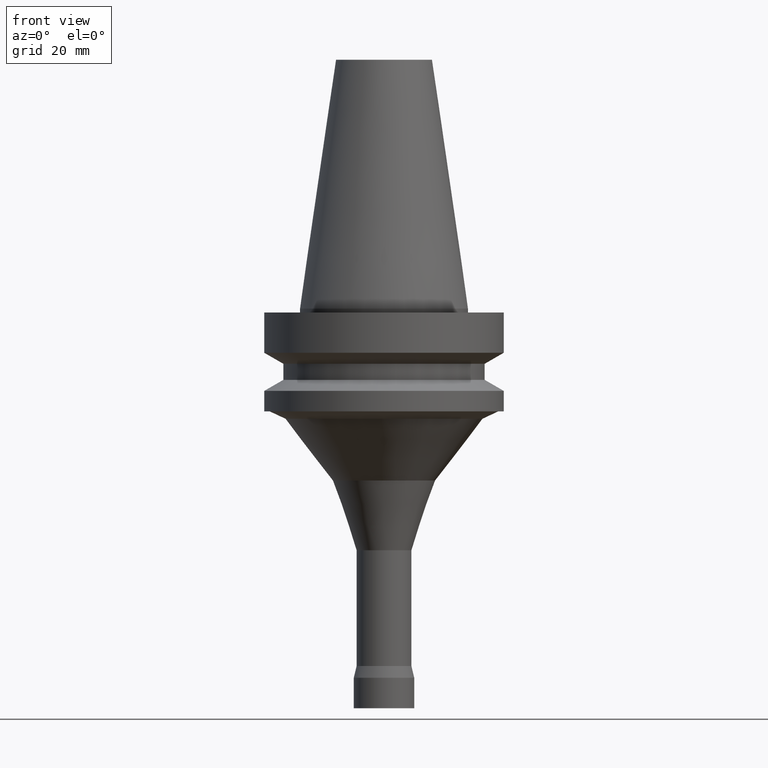
[diagram: clean part render]
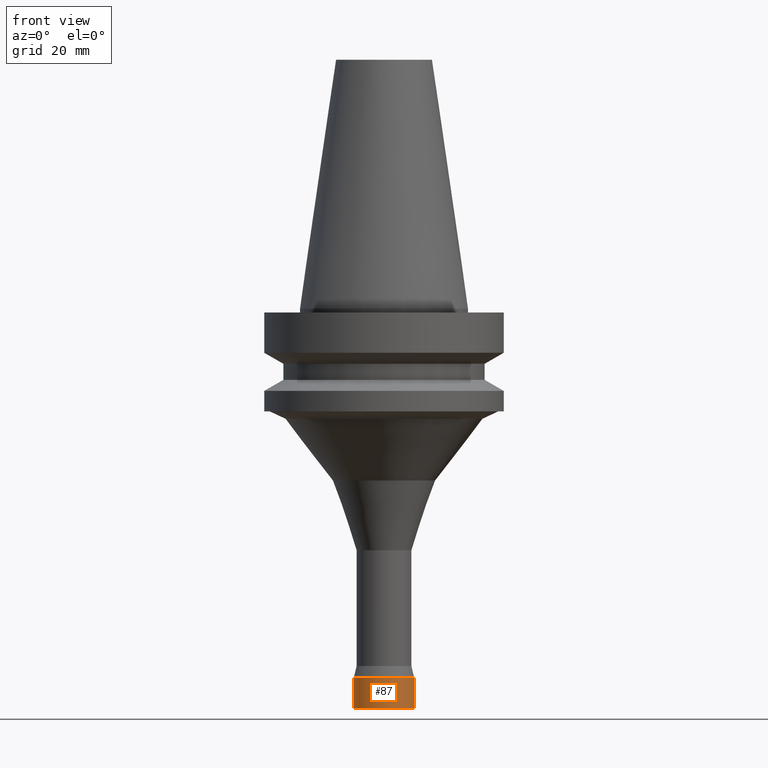
[diagram: same view with one face highlighted and labeled with its STEP entity id]
A machine part, front view. The second image highlights one B-rep face of the part: STEP entity #87.
In plain terms, the highlighted cylindrical surface (bore or boss wall) has radius 8 mm, axis along (-0, -0, 1).
Its self-contained STEP definition (entity closure, byte-faithful):
#87=ADVANCED_FACE('',(#129,#130),#131,.T.);
#129=FACE_BOUND('',#178,.T.);
#130=FACE_BOUND('',#179,.T.);
#131=CYLINDRICAL_SURFACE('',#180,8.0);
#178=EDGE_LOOP('',(#251));
#179=EDGE_LOOP('',(#252));
#180=AXIS2_PLACEMENT_3D('',#253,#254,#255);
#251=ORIENTED_EDGE('',*,*,#287,.F.);
#252=ORIENTED_EDGE('',*,*,#286,.T.);
#253=CARTESIAN_POINT('',(6.18446633569413E-015,1.23689326713883E-014,-101.0));
#254=DIRECTION('',(-6.12323399573677E-017,-1.22464679914735E-016,1.0));
#255=DIRECTION('',(-1.23259516440783E-032,1.0,1.22464679914735E-016));
#286=EDGE_CURVE('',#314,#314,#315,.T.);
#287=EDGE_CURVE('',#316,#316,#317,.T.);
#314=VERTEX_POINT('',#346);
#315=CIRCLE('',#347,8.0);
#316=VERTEX_POINT('',#348);
#317=CIRCLE('',#349,8.0);
#346=CARTESIAN_POINT('',(5.93953697586466E-015,8.00000000000001,-97.0));
#347=AXIS2_PLACEMENT_3D('',#390,#391,#392);
#348=CARTESIAN_POINT('',(6.4293956955236E-015,8.00000000000001,-105.0));
#349=AXIS2_PLACEMENT_3D('',#393,#394,#395);
#390=CARTESIAN_POINT('',(5.93953697586466E-015,1.18790739517293E-014,-97.0));
#391=DIRECTION('',(6.12323399573677E-017,1.22464679914735E-016,-1.0));
#392=DIRECTION('',(-1.23259516440783E-032,1.0,1.22464679914735E-016));
#393=CARTESIAN_POINT('',(6.4293956955236E-015,1.28587913910472E-014,-105.0));
#394=DIRECTION('',(6.12323399573677E-017,1.22464679914735E-016,-1.0));
#395=DIRECTION('',(-1.23259516440783E-032,1.0,1.22464679914735E-016));